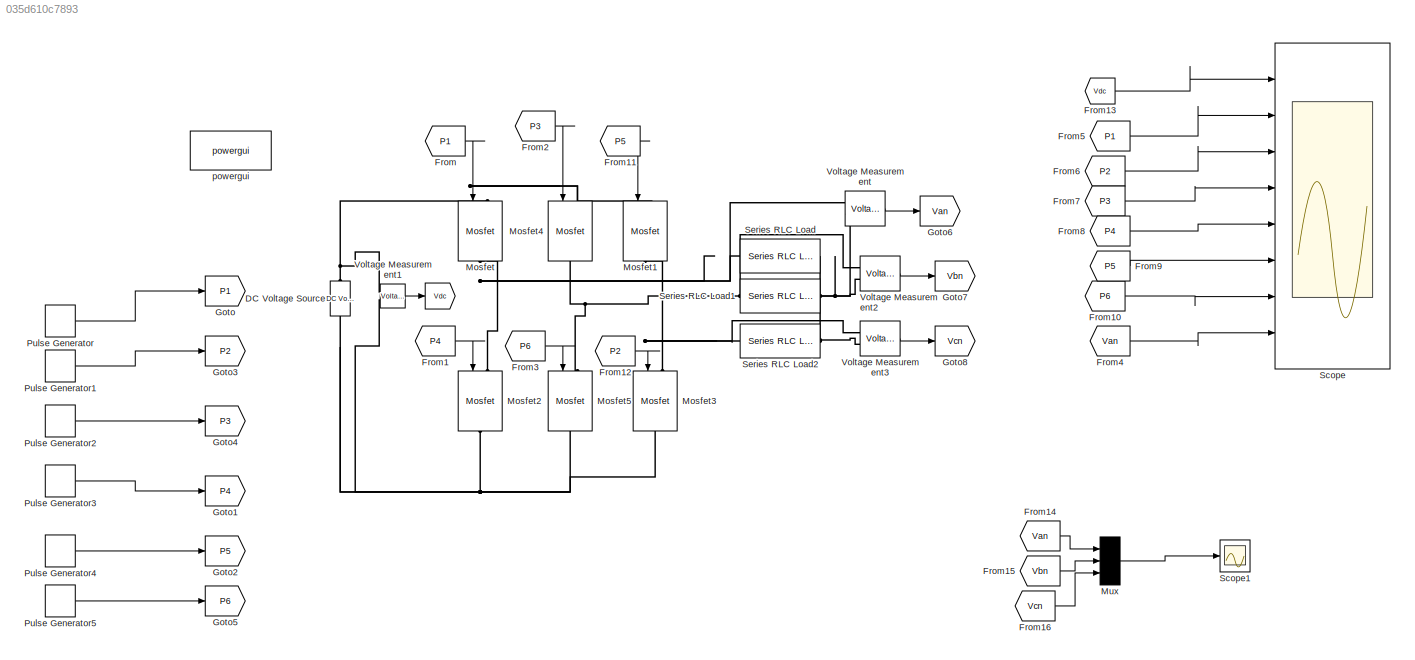
MODEL slx_035d610c7893
KIND model
CONFIG AbsTol = auto
CONFIG EnableMultiTasking = off
CONFIG FixedStep = auto
CONFIG MaxStep = auto
CONFIG MinStep = auto
CONFIG RelTol = 1e-3
CONFIG SampleTimeConstraint = Unconstrained
CONFIG Solver = VariableStepAuto
CONFIG SolverName = VariableStepAuto
CONFIG StartTime = 0.0
CONFIG StopTime = 10.0
BLOCK [Goto]  
  GotoTag = Vdc
BLOCK [Reference] DC Voltage Source  REF=powerlib/Electrical
Sources/DC Voltage Source
  Ports = [0, 0, 0, 0, 0, 1, 1]
  SourceBlock = powerlib/Electrical\nSources/DC Voltage Source
  SourceProductBaseCode = PS
  SourceProductName = Simscape Power Systems
  SourceType = DC Voltage Source
BLOCK [From] From
  GotoTag = P1
BLOCK [From] From1
  GotoTag = P4
BLOCK [From] From10
  GotoTag = P6
BLOCK [From] From11
  GotoTag = P5
BLOCK [From] From12
  GotoTag = P2
BLOCK [From] From13
  GotoTag = Vdc
BLOCK [From] From14
  GotoTag = Van
BLOCK [From] From15
  GotoTag = Vbn
BLOCK [From] From16
  GotoTag = Vcn
BLOCK [From] From2
  GotoTag = P3
BLOCK [From] From3
  GotoTag = P6
BLOCK [From] From4
  GotoTag = Van
BLOCK [From] From5
  GotoTag = P1
BLOCK [From] From6
  GotoTag = P2
BLOCK [From] From7
  GotoTag = P3
BLOCK [From] From8
  GotoTag = P4
BLOCK [From] From9
  GotoTag = P5
BLOCK [Goto] Goto
  GotoTag = P1
BLOCK [Goto] Goto1
  GotoTag = P4
BLOCK [Goto] Goto2
  GotoTag = P5
BLOCK [Goto] Goto3
  GotoTag = P2
BLOCK [Goto] Goto4
  GotoTag = P3
BLOCK [Goto] Goto5
  GotoTag = P6
BLOCK [Goto] Goto6
  GotoTag = Van
BLOCK [Goto] Goto7
  GotoTag = Vbn
BLOCK [Goto] Goto8
  GotoTag = Vcn
BLOCK [Reference] Mosfet  REF=powerlib/Power
Electronics/Mosfet
  Ports = [1, 0, 0, 0, 0, 1, 1]
  SourceBlock = powerlib/Power\nElectronics/Mosfet
  SourceProductBaseCode = PS
  SourceProductName = Simscape Power Systems
  SourceType = Mosfet
BLOCK [Reference] Mosfet1  REF=powerlib/Power
Electronics/Mosfet
  Ports = [1, 0, 0, 0, 0, 1, 1]
  SourceBlock = powerlib/Power\nElectronics/Mosfet
  SourceProductBaseCode = PS
  SourceProductName = Simscape Power Systems
  SourceType = Mosfet
BLOCK [Reference] Mosfet2  REF=powerlib/Power
Electronics/Mosfet
  Ports = [1, 0, 0, 0, 0, 1, 1]
  SourceBlock = powerlib/Power\nElectronics/Mosfet
  SourceProductBaseCode = PS
  SourceProductName = Simscape Power Systems
  SourceType = Mosfet
BLOCK [Reference] Mosfet3  REF=powerlib/Power
Electronics/Mosfet
  Ports = [1, 0, 0, 0, 0, 1, 1]
  SourceBlock = powerlib/Power\nElectronics/Mosfet
  SourceProductBaseCode = PS
  SourceProductName = Simscape Power Systems
  SourceType = Mosfet
BLOCK [Reference] Mosfet4  REF=powerlib/Power
Electronics/Mosfet
  Ports = [1, 0, 0, 0, 0, 1, 1]
  SourceBlock = powerlib/Power\nElectronics/Mosfet
  SourceProductBaseCode = PS
  SourceProductName = Simscape Power Systems
  SourceType = Mosfet
BLOCK [Reference] Mosfet5  REF=powerlib/Power
Electronics/Mosfet
  Ports = [1, 0, 0, 0, 0, 1, 1]
  SourceBlock = powerlib/Power\nElectronics/Mosfet
  SourceProductBaseCode = PS
  SourceProductName = Simscape Power Systems
  SourceType = Mosfet
BLOCK [Mux] Mux
  DisplayOption = bar
  Inputs = 3
  Ports = [3, 1]
BLOCK [DiscretePulseGenerator] Pulse Generator
  Period = 1/50
  Ports = [0, 1]
  PulseType = Time based
  PulseWidth = (120/360)*100
BLOCK [DiscretePulseGenerator] Pulse Generator1
  Period = 1/50
  PhaseDelay = 60*(1/50/360)
  Ports = [0, 1]
  PulseType = Time based
  PulseWidth = (120/360)*100
BLOCK [DiscretePulseGenerator] Pulse Generator2
  Period = 1/50
  PhaseDelay = 120*(1/50/360)
  Ports = [0, 1]
  PulseType = Time based
  PulseWidth = (120/360)*100
BLOCK [DiscretePulseGenerator] Pulse Generator3
  Period = 1/50
  PhaseDelay = 180*(1/50/360)
  Ports = [0, 1]
  PulseType = Time based
  PulseWidth = (120/360)*100
BLOCK [DiscretePulseGenerator] Pulse Generator4
  Period = 1/50
  PhaseDelay = 240*(1/50/360)
  Ports = [0, 1]
  PulseType = Time based
  PulseWidth = (120/360)*100
BLOCK [DiscretePulseGenerator] Pulse Generator5
  Period = 1/50
  PhaseDelay = 300*(1/50/360)
  Ports = [0, 1]
  PulseType = Time based
  PulseWidth = (120/360)*100
BLOCK [Scope] Scope
  Floating = off
  NumInputPorts = 8
  Ports = [8]
  ScopeSpecificationString = Simulink.scopes.TimeScopeBlockCfg('CurrentConfiguration', extmgr.ConfigurationSet(extmgr.Configuration('Core','General UI',true),extmgr.Configuration('Core','Source UI',true),extmgr.Configuration('Sources','WiredSimulink',true),extmgr.Configuration('Visuals','Time Domain',true,'SerializedDisplays',{struct('MinYLimReal','90.00000','MaxYLimReal','110.00000','YLabelReal','','MinYLimMag','90.00000','M...<+6291ch>
BLOCK [Scope] Scope1
  Floating = off
  NumInputPorts = 1
  Ports = [1]
  ScopeSpecificationString = Simulink.scopes.TimeScopeBlockCfg('CurrentConfiguration', extmgr.ConfigurationSet(extmgr.Configuration('Core','General UI',true),extmgr.Configuration('Core','Source UI',true),extmgr.Configuration('Sources','WiredSimulink',true,'DataLoggingVariableName','ScopeData1'),extmgr.Configuration('Visuals','Time Domain',true,'SerializedDisplays',{struct('MinYLimReal','-62.38195','MaxYLimReal','62.38195','YL...<+2743ch>
BLOCK [Reference] Series RLC Load  REF=powerlib/Elements/Series RLC Load
  AttributesFormatString = \n
  Ports = [0, 0, 0, 0, 0, 1, 1]
  SourceBlock = powerlib/Elements/Series RLC Load
  SourceProductBaseCode = PS
  SourceProductName = Simscape Power Systems
  SourceType = Series RLC Load
BLOCK [Reference] Series RLC Load1  REF=powerlib/Elements/Series RLC Load
  AttributesFormatString = \n
  Ports = [0, 0, 0, 0, 0, 1, 1]
  SourceBlock = powerlib/Elements/Series RLC Load
  SourceProductBaseCode = PS
  SourceProductName = Simscape Power Systems
  SourceType = Series RLC Load
BLOCK [Reference] Series RLC Load2  REF=powerlib/Elements/Series RLC Load
  AttributesFormatString = \n
  Ports = [0, 0, 0, 0, 0, 1, 1]
  SourceBlock = powerlib/Elements/Series RLC Load
  SourceProductBaseCode = PS
  SourceProductName = Simscape Power Systems
  SourceType = Series RLC Load
BLOCK [Reference] Voltage Measurement  REF=powerlib/Measurements/Voltage Measurement
  Ports = [0, 1, 0, 0, 0, 2]
  SourceBlock = powerlib/Measurements/Voltage Measurement
  SourceProductBaseCode = PS
  SourceProductName = Simscape Power Systems
  SourceType = Voltage Measurement
  UserDataPersistent = on
BLOCK [Reference] Voltage Measurement1  REF=powerlib/Measurements/Voltage Measurement
  Ports = [0, 1, 0, 0, 0, 2]
  SourceBlock = powerlib/Measurements/Voltage Measurement
  SourceProductBaseCode = PS
  SourceProductName = Simscape Power Systems
  SourceType = Voltage Measurement
  UserDataPersistent = on
BLOCK [Reference] Voltage Measurement2  REF=powerlib/Measurements/Voltage Measurement
  Ports = [0, 1, 0, 0, 0, 2]
  SourceBlock = powerlib/Measurements/Voltage Measurement
  SourceProductBaseCode = PS
  SourceProductName = Simscape Power Systems
  SourceType = Voltage Measurement
  UserDataPersistent = on
BLOCK [Reference] Voltage Measurement3  REF=powerlib/Measurements/Voltage Measurement
  Ports = [0, 1, 0, 0, 0, 2]
  SourceBlock = powerlib/Measurements/Voltage Measurement
  SourceProductBaseCode = PS
  SourceProductName = Simscape Power Systems
  SourceType = Voltage Measurement
  UserDataPersistent = on
BLOCK [Reference] powergui  REF=powerlib/powergui
  Ports = []
  Priority = 1
  SourceBlock = powerlib/powergui
  SourceProductBaseCode = PS
  SourceProductName = Simscape Power Systems
  SourceType = PSB option menu block
LINE From10:1 -> Scope:7
LINE From11:1 -> Mosfet1:1
LINE From12:1 -> Mosfet3:1
LINE From13:1 -> Scope:1
LINE From14:1 -> Mux:1
LINE From15:1 -> Mux:2
LINE From16:1 -> Mux:3
LINE From1:1 -> Mosfet2:1
LINE From2:1 -> Mosfet4:1
LINE From3:1 -> Mosfet5:1
LINE From4:1 -> Scope:8
LINE From5:1 -> Scope:2
LINE From6:1 -> Scope:3
LINE From7:1 -> Scope:4
LINE From8:1 -> Scope:5
LINE From9:1 -> Scope:6
LINE From:1 -> Mosfet:1
LINE Mux:1 -> Scope1:1
LINE Pulse Generator1:1 -> Goto3:1
LINE Pulse Generator2:1 -> Goto4:1
LINE Pulse Generator3:1 -> Goto1:1
LINE Pulse Generator4:1 -> Goto2:1
LINE Pulse Generator5:1 -> Goto5:1
LINE Pulse Generator:1 -> Goto:1
LINE Voltage Measurement1:1 ->  :1
LINE Voltage Measurement2:1 -> Goto7:1
LINE Voltage Measurement3:1 -> Goto8:1
LINE Voltage Measurement:1 -> Goto6:1
PNET net1: DC Voltage Source:LConn1 -- Mosfet2:RConn1 -- Mosfet3:RConn1 -- Mosfet5:RConn1 -- Voltage Measurement1:LConn2
PNET net2: DC Voltage Source:RConn1 -- Mosfet1:LConn1 -- Mosfet4:LConn1 -- Mosfet:LConn1 -- Voltage Measurement1:LConn1
PNET net3: Mosfet1:RConn1 -- Mosfet3:LConn1 -- Series RLC Load2:RConn1 -- Voltage Measurement3:LConn1
PNET net4: Mosfet2:LConn1 -- Mosfet:RConn1 -- Series RLC Load:RConn1 -- Voltage Measurement:LConn1
PNET net5: Mosfet4:RConn1 -- Mosfet5:LConn1 -- Series RLC Load1:RConn1 -- Voltage Measurement2:LConn1
PNET net6: Series RLC Load1:LConn1 -- Series RLC Load2:LConn1 -- Series RLC Load:LConn1 -- Voltage Measurement2:LConn2 -- Voltage Measurement3:LConn2 -- Voltage Measurement:LConn2
note: PNET lines group multi-terminal physical nets as a canonical sorted terminal list (undirected conserving connections); 2-terminal nets keep the pairwise PLINE form
